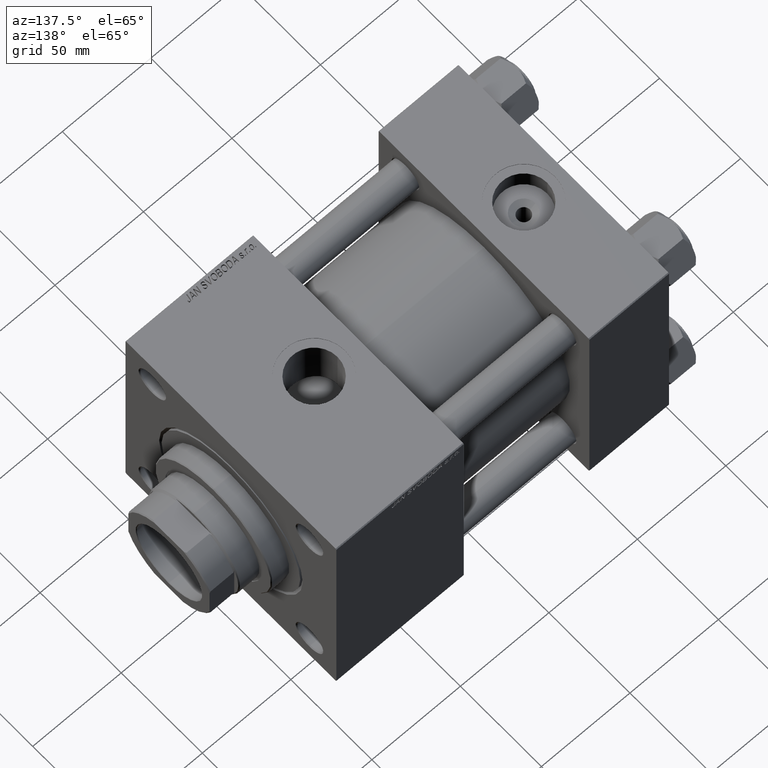
[diagram: clean part render]
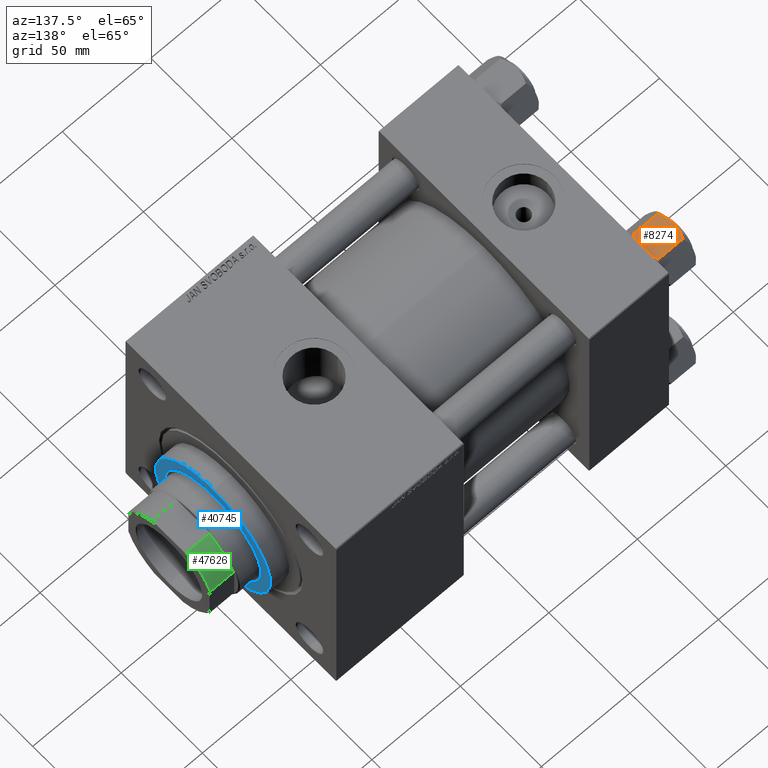
[diagram: same view with three faces highlighted in distinct colors, each labeled with its STEP entity id]
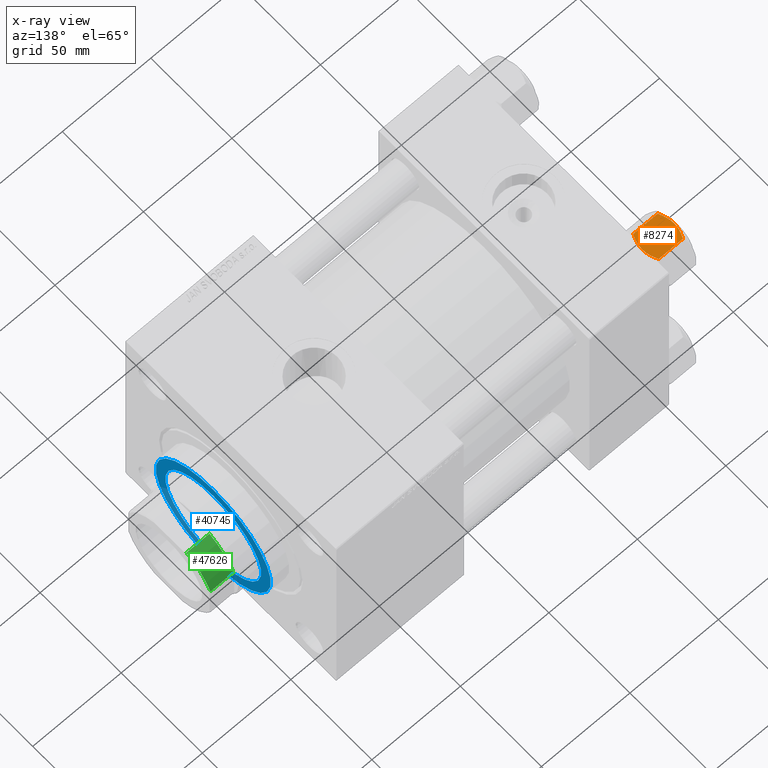
[diagram: x-ray of the same camera — body ghosted, the three highlighted faces saturated]
A machine part, auxiliary view with three faces highlighted in distinct colors.
The next image is the same camera in x-ray (body ghosted, the three faces saturated) — at least one of them is partly hidden behind the body in this view.
Their STEP definitions:

[orange] entity #8274 — the highlighted planar face has unit normal (-0, 0, -1).
#77 = CARTESIAN_POINT ( 'NONE',  ( 11.38181071908715225, 7.340759166634867938, -17.99999999999999645 ) ) ;
#470 = CARTESIAN_POINT ( 'NONE',  ( 14.92394044919337937, 1.205610507090638217, -16.56553707812499354 ) ) ;
#519 = CARTESIAN_POINT ( 'NONE',  ( 13.04337073483128506, 4.462852799541082938, -0.2430846701012950306 ) ) ;
#637 = CARTESIAN_POINT ( 'NONE',  ( 7.810000000000001386, 13.52731680711293905, -1.999999999999998224 ) ) ;
#1501 = CARTESIAN_POINT ( 'NONE',  ( 7.903528262322682352, 13.36532110482642111, -16.00000000000000000 ) ) ;
#2062 = VECTOR ( 'NONE', #35278, 1000.000000000000000 ) ;
#2338 = B_SPLINE_CURVE_WITH_KNOTS ( 'NONE', 3,
 ( #20587, #27279, #35722, #23683, #31859, #43931, #77, #23937 ),
 .UNSPECIFIED., .F., .F.,
 ( 4, 2, 2, 4 ),
 ( 4.472842641823326580E-07, 0.003945636373369297047, 0.005918230917921854864, 0.007890825462474411814 ),
 .UNSPECIFIED. ) ;
#3258 = DIRECTION ( 'NONE',  ( 0.4999999999999998890, -0.8660254037844387076, 0.000000000000000000 ) ) ;
#4101 = EDGE_CURVE ( 'NONE', #22175, #6849, #12324, .T. ) ;
#4105 = EDGE_CURVE ( 'NONE', #27522, #5521, #24118, .T. ) ;
#4115 = CARTESIAN_POINT ( 'NONE',  ( 11.71500000000000696, 6.763658403556468635, 0.000000000000000000 ) ) ;
#4656 = CARTESIAN_POINT ( 'NONE',  ( 11.71500000000000696, 6.763658403556468635, 0.000000000000000000 ) ) ;
#5521 = VERTEX_POINT ( 'NONE', #15826 ) ;
#6649 = CARTESIAN_POINT ( 'NONE',  ( 7.810000000000001386, 13.52731680711293905, -1.999999999999998224 ) ) ;
#6849 = VERTEX_POINT ( 'NONE', #6649 ) ;
#6856 = FACE_OUTER_BOUND ( 'NONE', #44667, .T. ) ;
#7582 = ORIENTED_EDGE ( 'NONE', *, *, #13104, .F. ) ;
#7885 = DIRECTION ( 'NONE',  ( -0.8660254037844387076, -0.4999999999999998890, 0.000000000000000000 ) ) ;
#8011 = CARTESIAN_POINT ( 'NONE',  ( 9.439480280627261521, 10.70497417113493022, -0.7317196846281139866 ) ) ;
#8172 = CARTESIAN_POINT ( 'NONE',  ( 13.02784502466562699, 4.489744118371585380, -17.80281335400753306 ) ) ;
#8217 = CARTESIAN_POINT ( 'NONE',  ( 14.92760668674625002, 1.199260397376446408, -1.411989271640064825 ) ) ;
#8274 = ADVANCED_FACE ( 'NONE', ( #6856 ), #27116, .F. ) ;
#8426 = CARTESIAN_POINT ( 'NONE',  ( 15.52647173767732447, 0.1619957022865091689, -16.00000000000000000 ) ) ;
#8465 = DIRECTION ( 'NONE',  ( -0.000000000000000000, -0.000000000000000000, 1.000000000000000000 ) ) ;
#8500 = ORIENTED_EDGE ( 'NONE', *, *, #4105, .F. ) ;
#8727 = CARTESIAN_POINT ( 'NONE',  ( 13.36540581434588049, 3.905071680002321521, -0.3836066851120565335 ) ) ;
#9010 = EDGE_CURVE ( 'NONE', #46644, #27522, #15091, .T. ) ;
#9432 = ORIENTED_EDGE ( 'NONE', *, *, #14235, .F. ) ;
#11192 = LINE ( 'NONE', #30142, #16575 ) ;
#12038 = CARTESIAN_POINT ( 'NONE',  ( 12.37702203890362540, 5.617002596445055396, -17.99999999999999289 ) ) ;
#12285 = CARTESIAN_POINT ( 'NONE',  ( 14.30591678195076177, 2.276058899034901550, -17.05261278537718539 ) ) ;
#12324 = LINE ( 'NONE', #43612, #22019 ) ;
#12333 = CARTESIAN_POINT ( 'NONE',  ( 15.52647173767732980, 0.1619957022864996210, -2.000000000000000000 ) ) ;
#12943 = ORIENTED_EDGE ( 'NONE', *, *, #47379, .F. ) ;
#13074 = CARTESIAN_POINT ( 'NONE',  ( 12.38621571200405924, 5.601078687526930722, -0.05089381635301206547 ) ) ;
#13104 = EDGE_CURVE ( 'NONE', #22175, #29907, #30380, .T. ) ;
#13323 = DIRECTION ( 'NONE',  ( 0.4999999999999998890, -0.8660254037844387076, 0.000000000000000000 ) ) ;
#14235 = EDGE_CURVE ( 'NONE', #31511, #40463, #40664, .T. ) ;
#14773 = CARTESIAN_POINT ( 'NONE',  ( 7.810000000000001386, 13.52731680711293905, -1.999999999999998224 ) ) ;
#15091 = B_SPLINE_CURVE_WITH_KNOTS ( 'NONE', 3,
 ( #47163, #12038, #8172, #39455, #12285, #470, #16148, #8426 ),
 .UNSPECIFIED., .F., .F.,
 ( 4, 2, 2, 4 ),
 ( 0.007890825462474411814, 0.01181022244528552242, 0.01376992093669107686, 0.01572961942809663130 ),
 .UNSPECIFIED. ) ;
#15778 = EDGE_CURVE ( 'NONE', #5521, #16082, #11192, .T. ) ;
#15826 = CARTESIAN_POINT ( 'NONE',  ( 15.62000000000000455, -3.536926823623210771E-15, -16.00000000000000000 ) ) ;
#15855 = CARTESIAN_POINT ( 'NONE',  ( 15.52647173767732447, 0.1619957022865091689, -16.00000000000000000 ) ) ;
#16082 = VERTEX_POINT ( 'NONE', #41637 ) ;
#16148 = CARTESIAN_POINT ( 'NONE',  ( 15.22736220980735844, 0.6800686015852310806, -16.29368822085855584 ) ) ;
#16575 = VECTOR ( 'NONE', #26058, 1000.000000000000000 ) ;
#18354 = CARTESIAN_POINT ( 'NONE',  ( 11.71500000000000163, 6.763658403556465082, -18.00000000000000000 ) ) ;
#18518 = B_SPLINE_CURVE_WITH_KNOTS ( 'NONE', 3,
 ( #12333, #8217, #20286, #8727, #519, #13074, #24379, #4115 ),
 .UNSPECIFIED., .F., .F.,
 ( 4, 2, 2, 4 ),
 ( 4.472842641998349527E-07, 0.003945636373369321333, 0.005918230917921882620, 0.007890825462474443039 ),
 .UNSPECIFIED. ) ;
#18789 = CARTESIAN_POINT ( 'NONE',  ( 11.71500000000000696, 6.763658403556468635, 0.000000000000000000 ) ) ;
#19183 = CARTESIAN_POINT ( 'NONE',  ( 7.810000000000001386, 13.52731680711293905, -18.00000000000000000 ) ) ;
#20072 = CARTESIAN_POINT ( 'NONE',  ( 8.506059550806616798, 12.32170630002230638, -1.434462921875002905 ) ) ;
#20286 = CARTESIAN_POINT ( 'NONE',  ( 14.31545111198821552, 2.259544954993890187, -0.9142282604026924497 ) ) ;
#20587 = CARTESIAN_POINT ( 'NONE',  ( 7.903528262322682352, 13.36532110482642111, -16.00000000000000000 ) ) ;
#21277 = ORIENTED_EDGE ( 'NONE', *, *, #36695, .F. ) ;
#21509 = VECTOR ( 'NONE', #26287, 1000.000000000000000 ) ;
#22019 = VECTOR ( 'NONE', #8465, 1000.000000000000000 ) ;
#22175 = VERTEX_POINT ( 'NONE', #23340 ) ;
#23340 = CARTESIAN_POINT ( 'NONE',  ( 7.810000000000001386, 13.52731680711293905, -16.00000000000000000 ) ) ;
#23683 = CARTESIAN_POINT ( 'NONE',  ( 10.06459418565413344, 9.622245127110607754, -17.61639331488794014 ) ) ;
#23819 = EDGE_CURVE ( 'NONE', #49336, #31511, #18518, .T. ) ;
#23937 = CARTESIAN_POINT ( 'NONE',  ( 11.71500000000000163, 6.763658403556465082, -18.00000000000000000 ) ) ;
#24118 = LINE ( 'NONE', #47704, #24477 ) ;
#24379 = CARTESIAN_POINT ( 'NONE',  ( 12.04818928091285812, 6.186557640478061337, 4.387630666777275756E-15 ) ) ;
#24477 = VECTOR ( 'NONE', #13323, 1000.000000000000000 ) ;
#26058 = DIRECTION ( 'NONE',  ( -0.000000000000000000, -0.000000000000000000, 1.000000000000000000 ) ) ;
#26287 = DIRECTION ( 'NONE',  ( 0.4999999999999998890, -0.8660254037844387076, 0.000000000000000000 ) ) ;
#27074 = AXIS2_PLACEMENT_3D ( 'NONE', #19183, #7885, #3258 ) ;
#27116 = PLANE ( 'NONE',  #27074 ) ;
#27230 = ORIENTED_EDGE ( 'NONE', *, *, #15778, .F. ) ;
#27279 = CARTESIAN_POINT ( 'NONE',  ( 8.502393313253762130, 12.32805640973647421, -16.58801072835992585 ) ) ;
#27522 = VERTEX_POINT ( 'NONE', #15855 ) ;
#29907 = VERTEX_POINT ( 'NONE', #1501 ) ;
#30142 = CARTESIAN_POINT ( 'NONE',  ( 15.62000000000000455, -3.536926823623210771E-15, -18.00000000000000000 ) ) ;
#30380 = LINE ( 'NONE', #35196, #21509 ) ;
#30916 = LINE ( 'NONE', #637, #2062 ) ;
#31063 = ORIENTED_EDGE ( 'NONE', *, *, #23819, .F. ) ;
#31511 = VERTEX_POINT ( 'NONE', #18789 ) ;
#31859 = CARTESIAN_POINT ( 'NONE',  ( 10.38662926516872709, 9.064464007571846338, -17.75691532989869970 ) ) ;
#32331 = ORIENTED_EDGE ( 'NONE', *, *, #4101, .T. ) ;
#34669 = CARTESIAN_POINT ( 'NONE',  ( 15.52647173767732980, 0.1619957022864996210, -2.000000000000000000 ) ) ;
#35196 = CARTESIAN_POINT ( 'NONE',  ( 7.810000000000001386, 13.52731680711293905, -16.00000000000000000 ) ) ;
#35278 = DIRECTION ( 'NONE',  ( -0.4999999999999998890, 0.8660254037844387076, 0.000000000000000000 ) ) ;
#35448 = CARTESIAN_POINT ( 'NONE',  ( 8.202637790192646605, 12.84724820552771085, -1.706311779141445495 ) ) ;
#35722 = CARTESIAN_POINT ( 'NONE',  ( 9.114548888011791306, 11.26777185211903110, -17.08577173959729478 ) ) ;
#35945 = CARTESIAN_POINT ( 'NONE',  ( 7.903528262322677023, 13.36532110482643176, -2.000000000000000000 ) ) ;
#35990 = CARTESIAN_POINT ( 'NONE',  ( 7.903528262322677023, 13.36532110482643176, -2.000000000000000000 ) ) ;
#36195 = CARTESIAN_POINT ( 'NONE',  ( 10.40215497533437272, 9.037572688741351001, -0.1971866459924537240 ) ) ;
#36695 = EDGE_CURVE ( 'NONE', #29907, #46644, #2338, .T. ) ;
#39455 = CARTESIAN_POINT ( 'NONE',  ( 13.99051971937273997, 2.822342635978011938, -17.26828031537188934 ) ) ;
#40463 = VERTEX_POINT ( 'NONE', #35990 ) ;
#40664 = B_SPLINE_CURVE_WITH_KNOTS ( 'NONE', 3,
 ( #4656, #47497, #36195, #8011, #47997, #20072, #35448, #35945 ),
 .UNSPECIFIED., .F., .F.,
 ( 4, 2, 2, 4 ),
 ( 0.007890825462474443039, 0.01181022244528556059, 0.01376992093669111850, 0.01572961942809667640 ),
 .UNSPECIFIED. ) ;
#41436 = LINE ( 'NONE', #14773, #47176 ) ;
#41637 = CARTESIAN_POINT ( 'NONE',  ( 15.62000000000000455, -3.536926823623210771E-15, -1.999999999999998224 ) ) ;
#43372 = ORIENTED_EDGE ( 'NONE', *, *, #46626, .F. ) ;
#43612 = CARTESIAN_POINT ( 'NONE',  ( 7.810000000000001386, 13.52731680711293905, -18.00000000000000000 ) ) ;
#43931 = CARTESIAN_POINT ( 'NONE',  ( 11.04378428799595468, 7.926238119586001218, -17.94910618364698607 ) ) ;
#44667 = EDGE_LOOP ( 'NONE', ( #7582, #32331, #12943, #9432, #31063, #43372, #27230, #8500, #49236, #21277 ) ) ;
#46626 = EDGE_CURVE ( 'NONE', #16082, #49336, #41436, .T. ) ;
#46644 = VERTEX_POINT ( 'NONE', #18354 ) ;
#47163 = CARTESIAN_POINT ( 'NONE',  ( 11.71500000000000163, 6.763658403556465082, -18.00000000000000000 ) ) ;
#47176 = VECTOR ( 'NONE', #49641, 1000.000000000000000 ) ;
#47379 = EDGE_CURVE ( 'NONE', #40463, #6849, #30916, .T. ) ;
#47497 = CARTESIAN_POINT ( 'NONE',  ( 11.05297796109638142, 7.910314210667880985, 4.223306275009939913E-15 ) ) ;
#47704 = CARTESIAN_POINT ( 'NONE',  ( 7.810000000000001386, 13.52731680711293905, -16.00000000000000000 ) ) ;
#47997 = CARTESIAN_POINT ( 'NONE',  ( 9.124083218049243271, 11.25125790807804194, -0.9473872146228123903 ) ) ;
#49236 = ORIENTED_EDGE ( 'NONE', *, *, #9010, .F. ) ;
#49336 = VERTEX_POINT ( 'NONE', #34669 ) ;
#49641 = DIRECTION ( 'NONE',  ( -0.4999999999999998890, 0.8660254037844387076, 0.000000000000000000 ) ) ;

[blue] entity #40745 — the highlighted planar face has unit normal (1, 0, 0).
#5 = CARTESIAN_POINT ( 'NONE',  ( -29.50000000000000355, 3.612708057484692393E-15, 38.69999999999999574 ) ) ;
#831 = VERTEX_POINT ( 'NONE', #5 ) ;
#5329 = CARTESIAN_POINT ( 'NONE',  ( 0.000000000000000000, 0.000000000000000000, 38.69999999999999574 ) ) ;
#5716 = CIRCLE ( 'NONE', #34392, 35.49999999999999289 ) ;
#5971 = ORIENTED_EDGE ( 'NONE', *, *, #10382, .F. ) ;
#6668 = AXIS2_PLACEMENT_3D ( 'NONE', #31395, #47052, #35252 ) ;
#8620 = ORIENTED_EDGE ( 'NONE', *, *, #20061, .F. ) ;
#10382 = EDGE_CURVE ( 'NONE', #17309, #831, #21432, .T. ) ;
#10656 = DIRECTION ( 'NONE',  ( 1.000000000000000000, 0.000000000000000000, 0.000000000000000000 ) ) ;
#11751 = AXIS2_PLACEMENT_3D ( 'NONE', #5329, #20496, #12799 ) ;
#12799 = DIRECTION ( 'NONE',  ( 1.000000000000000000, 0.000000000000000000, -0.000000000000000000 ) ) ;
#13086 = EDGE_CURVE ( 'NONE', #43197, #47139, #43631, .T. ) ;
#17309 = VERTEX_POINT ( 'NONE', #38330 ) ;
#17395 = FACE_OUTER_BOUND ( 'NONE', #37117, .T. ) ;
#20061 = EDGE_CURVE ( 'NONE', #831, #17309, #21645, .T. ) ;
#20496 = DIRECTION ( 'NONE',  ( 0.000000000000000000, 0.000000000000000000, 1.000000000000000000 ) ) ;
#21432 = CIRCLE ( 'NONE', #6668, 29.50000000000000355 ) ;
#21645 = CIRCLE ( 'NONE', #47022, 29.50000000000000355 ) ;
#27215 = AXIS2_PLACEMENT_3D ( 'NONE', #28000, #45787, #10656 ) ;
#28000 = CARTESIAN_POINT ( 'NONE',  ( 0.000000000000000000, 0.000000000000000000, 38.69999999999999574 ) ) ;
#28180 = PLANE ( 'NONE',  #11751 ) ;
#28830 = CARTESIAN_POINT ( 'NONE',  ( 0.000000000000000000, 0.000000000000000000, 38.69999999999999574 ) ) ;
#29057 = EDGE_CURVE ( 'NONE', #47139, #43197, #5716, .T. ) ;
#31395 = CARTESIAN_POINT ( 'NONE',  ( 0.000000000000000000, 0.000000000000000000, 38.69999999999999574 ) ) ;
#32237 = DIRECTION ( 'NONE',  ( 0.000000000000000000, 0.000000000000000000, 1.000000000000000000 ) ) ;
#32520 = FACE_BOUND ( 'NONE', #48674, .T. ) ;
#34392 = AXIS2_PLACEMENT_3D ( 'NONE', #36336, #32237, #44046 ) ;
#35252 = DIRECTION ( 'NONE',  ( 1.000000000000000000, 0.000000000000000000, 0.000000000000000000 ) ) ;
#35709 = ORIENTED_EDGE ( 'NONE', *, *, #29057, .T. ) ;
#36336 = CARTESIAN_POINT ( 'NONE',  ( 0.000000000000000000, 0.000000000000000000, 38.69999999999999574 ) ) ;
#37117 = EDGE_LOOP ( 'NONE', ( #35709, #46902 ) ) ;
#38330 = CARTESIAN_POINT ( 'NONE',  ( 29.50000000000000355, 0.000000000000000000, 38.69999999999999574 ) ) ;
#39298 = CARTESIAN_POINT ( 'NONE',  ( -35.49999999999999289, 0.000000000000000000, 38.69999999999999574 ) ) ;
#40745 = ADVANCED_FACE ( 'NONE', ( #32520, #17395 ), #28180, .T. ) ;
#43197 = VERTEX_POINT ( 'NONE', #48431 ) ;
#43631 = CIRCLE ( 'NONE', #27215, 35.49999999999999289 ) ;
#44046 = DIRECTION ( 'NONE',  ( 1.000000000000000000, 0.000000000000000000, 0.000000000000000000 ) ) ;
#45787 = DIRECTION ( 'NONE',  ( 0.000000000000000000, 0.000000000000000000, 1.000000000000000000 ) ) ;
#46902 = ORIENTED_EDGE ( 'NONE', *, *, #13086, .T. ) ;
#47022 = AXIS2_PLACEMENT_3D ( 'NONE', #28830, #48582, #49075 ) ;
#47052 = DIRECTION ( 'NONE',  ( 0.000000000000000000, 0.000000000000000000, 1.000000000000000000 ) ) ;
#47139 = VERTEX_POINT ( 'NONE', #39298 ) ;
#48431 = CARTESIAN_POINT ( 'NONE',  ( 35.49999999999999289, 4.378112306951787069E-15, 38.69999999999999574 ) ) ;
#48582 = DIRECTION ( 'NONE',  ( 0.000000000000000000, 0.000000000000000000, 1.000000000000000000 ) ) ;
#48674 = EDGE_LOOP ( 'NONE', ( #5971, #8620 ) ) ;
#49075 = DIRECTION ( 'NONE',  ( 1.000000000000000000, 0.000000000000000000, 0.000000000000000000 ) ) ;

[green] entity #47626 — the highlighted cylindrical surface (partial cylindrical patch) has radius 27 mm, axis along (1, 0, -0).
#1531 = ORIENTED_EDGE ( 'NONE', *, *, #8792, .F. ) ;
#3555 = VERTEX_POINT ( 'NONE', #6743 ) ;
#5185 = CIRCLE ( 'NONE', #11779, 27.00000000000000355 ) ;
#6743 = CARTESIAN_POINT ( 'NONE',  ( 24.99999999999999645, -10.19803902718558675, 164.4999999999999716 ) ) ;
#6935 = CARTESIAN_POINT ( 'NONE',  ( 24.99999999999999645, -10.19803902718558675, -0.001000000000001000089 ) ) ;
#8792 = EDGE_CURVE ( 'NONE', #10756, #17476, #29550, .T. ) ;
#8958 = DIRECTION ( 'NONE',  ( -1.000000000000000000, 0.000000000000000000, 0.000000000000000000 ) ) ;
#10756 = VERTEX_POINT ( 'NONE', #34944 ) ;
#11779 = AXIS2_PLACEMENT_3D ( 'NONE', #42229, #30925, #19148 ) ;
#14665 = EDGE_LOOP ( 'NONE', ( #21217, #29786, #1531, #45131 ) ) ;
#16552 = CYLINDRICAL_SURFACE ( 'NONE', #38191, 27.00000000000000355 ) ;
#17297 = CARTESIAN_POINT ( 'NONE',  ( 0.000000000000000000, 0.000000000000000000, -0.001000000000001000089 ) ) ;
#17476 = VERTEX_POINT ( 'NONE', #47295 ) ;
#19148 = DIRECTION ( 'NONE',  ( 1.000000000000000000, 0.000000000000000000, 0.000000000000000000 ) ) ;
#19822 = EDGE_CURVE ( 'NONE', #3555, #26095, #30256, .T. ) ;
#19885 = EDGE_CURVE ( 'NONE', #26095, #17476, #5185, .T. ) ;
#20777 = VECTOR ( 'NONE', #46179, 1000.000000000000000 ) ;
#21217 = ORIENTED_EDGE ( 'NONE', *, *, #19822, .T. ) ;
#22164 = VECTOR ( 'NONE', #40355, 1000.000000000000000 ) ;
#22322 = CIRCLE ( 'NONE', #23131, 27.00000000000000355 ) ;
#23131 = AXIS2_PLACEMENT_3D ( 'NONE', #27952, #44102, #8958 ) ;
#26095 = VERTEX_POINT ( 'NONE', #38449 ) ;
#27952 = CARTESIAN_POINT ( 'NONE',  ( 0.000000000000000000, 0.000000000000000000, 164.4999999999999716 ) ) ;
#29075 = DIRECTION ( 'NONE',  ( -0.000000000000000000, -0.000000000000000000, 1.000000000000000000 ) ) ;
#29550 = LINE ( 'NONE', #49312, #22164 ) ;
#29786 = ORIENTED_EDGE ( 'NONE', *, *, #19885, .T. ) ;
#30256 = LINE ( 'NONE', #6935, #20777 ) ;
#30925 = DIRECTION ( 'NONE',  ( -0.000000000000000000, -0.000000000000000000, -1.000000000000000000 ) ) ;
#34441 = EDGE_CURVE ( 'NONE', #10756, #3555, #22322, .T. ) ;
#34944 = CARTESIAN_POINT ( 'NONE',  ( 10.19803902718556188, -25.00000000000000355, 164.4999999999999716 ) ) ;
#36023 = FACE_OUTER_BOUND ( 'NONE', #14665, .T. ) ;
#38191 = AXIS2_PLACEMENT_3D ( 'NONE', #17297, #29075, #44721 ) ;
#38449 = CARTESIAN_POINT ( 'NONE',  ( 24.99999999999999645, -10.19803902718558675, 177.4999999999999716 ) ) ;
#40355 = DIRECTION ( 'NONE',  ( -0.000000000000000000, -0.000000000000000000, 1.000000000000000000 ) ) ;
#42229 = CARTESIAN_POINT ( 'NONE',  ( 0.000000000000000000, 0.000000000000000000, 177.4999999999999716 ) ) ;
#44102 = DIRECTION ( 'NONE',  ( -0.000000000000000000, -0.000000000000000000, 1.000000000000000000 ) ) ;
#44721 = DIRECTION ( 'NONE',  ( 1.000000000000000000, 0.000000000000000000, 0.000000000000000000 ) ) ;
#45131 = ORIENTED_EDGE ( 'NONE', *, *, #34441, .T. ) ;
#46179 = DIRECTION ( 'NONE',  ( -0.000000000000000000, -0.000000000000000000, 1.000000000000000000 ) ) ;
#47295 = CARTESIAN_POINT ( 'NONE',  ( 10.19803902718556188, -25.00000000000000355, 177.4999999999999716 ) ) ;
#47626 = ADVANCED_FACE ( 'NONE', ( #36023 ), #16552, .T. ) ;
#49312 = CARTESIAN_POINT ( 'NONE',  ( 10.19803902718556188, -25.00000000000000355, -0.001000000000001000089 ) ) ;